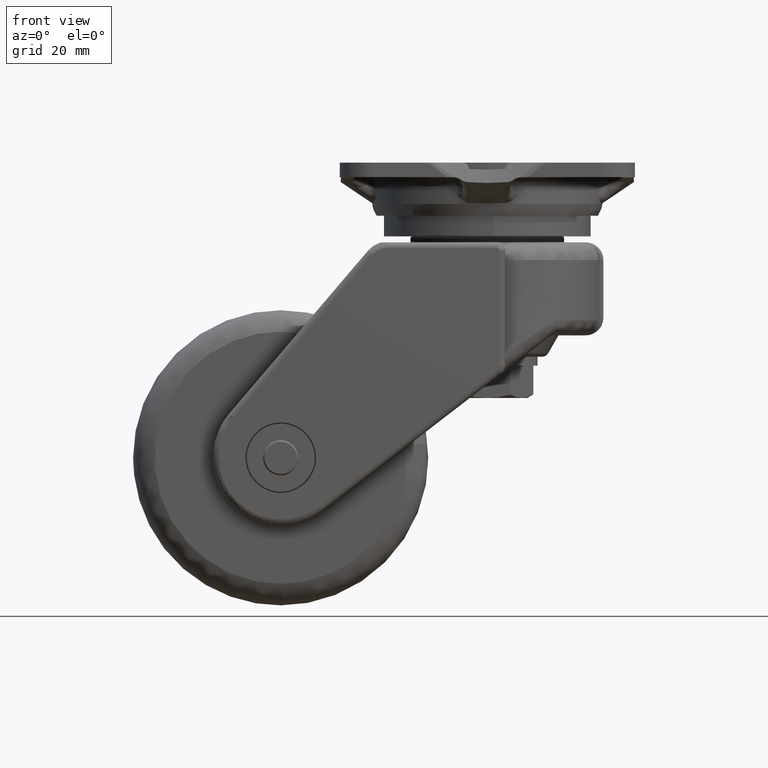
[diagram: clean part render]
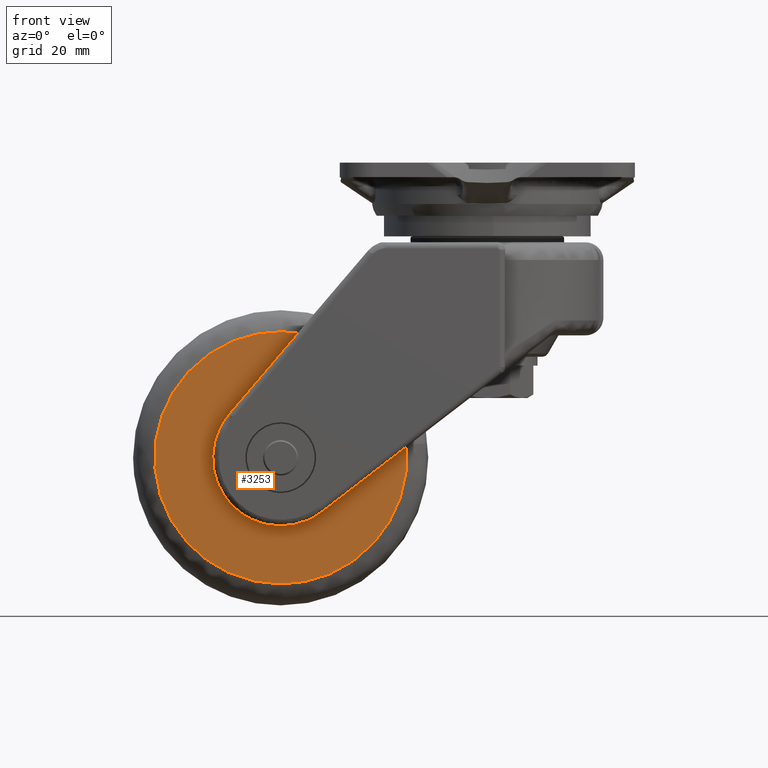
[diagram: same view with one face highlighted and labeled with its STEP entity id]
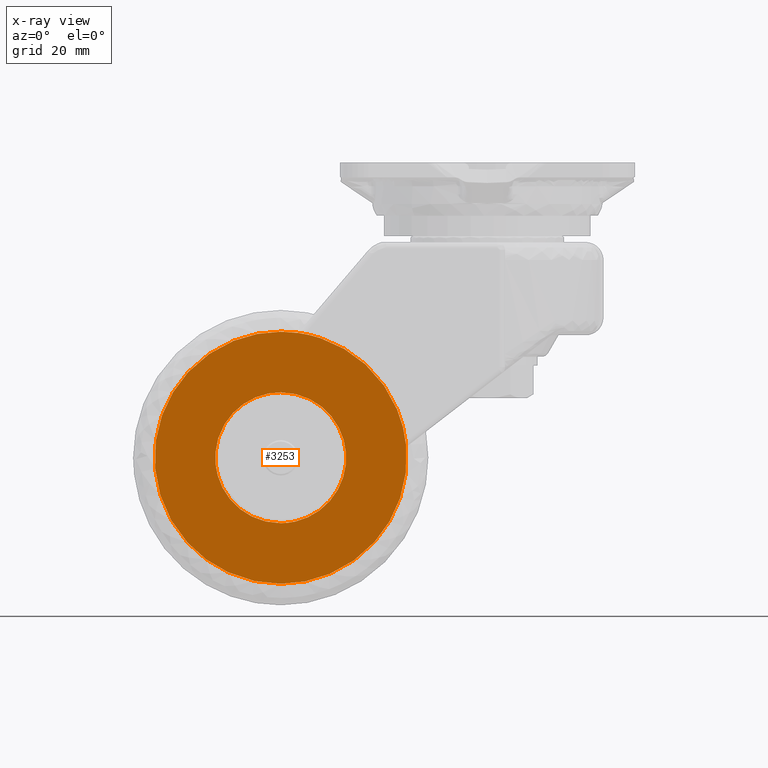
[diagram: x-ray of the same camera — body ghosted, the highlighted face saturated]
A machine part, front view. The second image highlights one B-rep face of the part: STEP entity #3253.
The next image is the same camera in x-ray: the body ghosted, the highlighted face saturated — about 0% of this face is hidden behind the body in this view.
In plain terms, the highlighted face is a freeform B-spline surface patch.
Its self-contained STEP definition (entity closure, byte-faithful):
#1181=CARTESIAN_POINT('',(-92.102474761133081,-28.999999999958519,-80.260497510465314));
#1182=VERTEX_POINT('',#1181);
#1188=CARTESIAN_POINT('',(-70.0,-29.0,-104.170820000000010));
#1189=VERTEX_POINT('',#1188);
#1190=CARTESIAN_POINT('',(-70.0,-29.0,-104.170820000000010));
#1191=CARTESIAN_POINT('',(-92.170820000000020,-29.000000000000007,-104.170819999999990));
#1192=CARTESIAN_POINT('',(-92.170820000000020,-29.0,-82.0));
#1193=CARTESIAN_POINT('',(-92.170820000000020,-29.0,-81.128906108967939));
#1194=CARTESIAN_POINT('',(-92.102474761133081,-28.999999999958526,-80.260497510465314));
#1202=(BOUNDED_CURVE()B_SPLINE_CURVE(2,(#1190,#1191,#1192,#1193,#1194),.UNSPECIFIED.,.F.,.U.)B_SPLINE_CURVE_WITH_KNOTS((3,2,3),(0.500000000000000,0.750000000000000,0.763668699379342),.UNSPECIFIED.)CURVE()GEOMETRIC_REPRESENTATION_ITEM()RATIONAL_B_SPLINE_CURVE((1.0,0.707106781186547,1.0,0.983986122567164,0.969723356146544))REPRESENTATION_ITEM(''));
#1203=EDGE_CURVE('',#1189,#1182,#1202,.T.);
#1205=CARTESIAN_POINT('',(-70.0,-29.0,-59.829180000000001));
#1206=VERTEX_POINT('',#1205);
#1207=CARTESIAN_POINT('',(-70.0,-29.0,-59.829180000000001));
#1208=CARTESIAN_POINT('',(-47.829180000000008,-29.000000000000007,-59.829180000000015));
#1209=CARTESIAN_POINT('',(-47.829180000000008,-29.0,-82.0));
#1210=CARTESIAN_POINT('',(-47.829180000000008,-29.000000000000007,-104.170819999999990));
#1211=CARTESIAN_POINT('',(-70.0,-29.0,-104.170820000000010));
#1219=(BOUNDED_CURVE()B_SPLINE_CURVE(2,(#1207,#1208,#1209,#1210,#1211),.UNSPECIFIED.,.F.,.U.)B_SPLINE_CURVE_WITH_KNOTS((3,2,3),(0.0,0.250000000000000,0.500000000000000),.UNSPECIFIED.)CURVE()GEOMETRIC_REPRESENTATION_ITEM()RATIONAL_B_SPLINE_CURVE((1.0,0.707106781186547,1.0,0.707106781186547,1.0))REPRESENTATION_ITEM(''));
#1220=EDGE_CURVE('',#1206,#1189,#1219,.T.);
#1222=CARTESIAN_POINT('',(-82.655996043403846,-28.999999999998121,-63.796400805830217));
#1223=VERTEX_POINT('',#1222);
#1224=CARTESIAN_POINT('',(-82.655996043403846,-28.999999999998114,-63.796400805830224));
#1225=CARTESIAN_POINT('',(-76.949791868268690,-29.0,-59.829180000000008));
#1226=CARTESIAN_POINT('',(-70.0,-29.0,-59.829180000000001));
#1234=(BOUNDED_CURVE()B_SPLINE_CURVE(2,(#1224,#1225,#1226),.UNSPECIFIED.,.F.,.U.)B_SPLINE_CURVE_WITH_KNOTS((3,3),(0.901909391059582,1.0),.UNSPECIFIED.)CURVE()GEOMETRIC_REPRESENTATION_ITEM()RATIONAL_B_SPLINE_CURVE((0.860340221600475,0.885079703248278,1.0))REPRESENTATION_ITEM(''));
#1235=EDGE_CURVE('',#1223,#1206,#1234,.T.);
#1273=CARTESIAN_POINT('',(-92.102474761133081,-28.999999999958519,-80.260497510465314));
#1274=CARTESIAN_POINT('',(-91.278522022124079,-29.0,-69.791185326640303));
#1275=CARTESIAN_POINT('',(-82.655996043403846,-28.999999999998114,-63.796400805830224));
#1283=(BOUNDED_CURVE()B_SPLINE_CURVE(2,(#1273,#1274,#1275),.UNSPECIFIED.,.F.,.U.)B_SPLINE_CURVE_WITH_KNOTS((3,3),(0.763668699379342,0.901909391059582),.UNSPECIFIED.)CURVE()GEOMETRIC_REPRESENTATION_ITEM()RATIONAL_B_SPLINE_CURVE((0.969723356146546,0.825474467460033,0.860340221600475))REPRESENTATION_ITEM(''));
#1284=EDGE_CURVE('',#1182,#1223,#1283,.T.);
#2683=CARTESIAN_POINT('',(-56.391804598703523,-29.0,-41.521937133909319));
#2684=VERTEX_POINT('',#2683);
#2698=CARTESIAN_POINT('',(-27.511321238750511,-29.0,-77.714124022097238));
#2699=VERTEX_POINT('',#2698);
#2700=CARTESIAN_POINT('',(-56.391804598703523,-28.999999999999993,-41.521937133909319));
#2701=CARTESIAN_POINT('',(-30.276452577349460,-29.000000000000004,-50.301576974507853));
#2702=CARTESIAN_POINT('',(-27.511321238750515,-29.000000000000004,-77.714124022097238));
#2710=(BOUNDED_CURVE()B_SPLINE_CURVE(2,(#2700,#2701,#2702),.UNSPECIFIED.,.F.,.U.)B_SPLINE_CURVE_WITH_KNOTS((3,3),(0.054168823122165,0.232576558912858),.UNSPECIFIED.)CURVE()GEOMETRIC_REPRESENTATION_ITEM()RATIONAL_B_SPLINE_CURVE((0.900576160797837,0.782136423769729,0.962019632120242))REPRESENTATION_ITEM(''));
#2711=EDGE_CURVE('',#2684,#2699,#2710,.T.);
#2827=CARTESIAN_POINT('',(-70.0,-29.0,-124.704291999999900));
#2828=VERTEX_POINT('',#2827);
#2829=CARTESIAN_POINT('',(-27.511321238750508,-28.999999999999996,-77.714124022097238));
#2830=CARTESIAN_POINT('',(-27.295708000000101,-29.000000000000004,-79.851638490668506));
#2831=CARTESIAN_POINT('',(-27.295708000000101,-29.0,-82.0));
#2832=CARTESIAN_POINT('',(-27.295708000000108,-29.000000000000007,-124.704291999999900));
#2833=CARTESIAN_POINT('',(-70.0,-29.0,-124.704291999999900));
#2841=(BOUNDED_CURVE()B_SPLINE_CURVE(2,(#2829,#2830,#2831,#2832,#2833),.UNSPECIFIED.,.F.,.U.)B_SPLINE_CURVE_WITH_KNOTS((3,2,3),(0.232576558912858,0.250000000000000,0.500000000000000),.UNSPECIFIED.)CURVE()GEOMETRIC_REPRESENTATION_ITEM()RATIONAL_B_SPLINE_CURVE((0.962019632120242,0.979587169028722,1.0,0.707106781186547,1.0))REPRESENTATION_ITEM(''));
#2842=EDGE_CURVE('',#2699,#2828,#2841,.T.);
#2844=CARTESIAN_POINT('',(-70.0,-29.0,-39.295708000000097));
#2845=VERTEX_POINT('',#2844);
#2846=CARTESIAN_POINT('',(-70.0,-29.0,-124.704291999999900));
#2847=CARTESIAN_POINT('',(-112.704291999999900,-29.000000000000007,-124.704291999999900));
#2848=CARTESIAN_POINT('',(-112.704291999999900,-29.0,-82.0));
#2849=CARTESIAN_POINT('',(-112.704291999999900,-29.000000000000007,-39.295708000000111));
#2850=CARTESIAN_POINT('',(-70.0,-29.0,-39.295708000000097));
#2858=(BOUNDED_CURVE()B_SPLINE_CURVE(2,(#2846,#2847,#2848,#2849,#2850),.UNSPECIFIED.,.F.,.U.)B_SPLINE_CURVE_WITH_KNOTS((3,2,3),(0.500000000000000,0.750000000000000,1.0),.UNSPECIFIED.)CURVE()GEOMETRIC_REPRESENTATION_ITEM()RATIONAL_B_SPLINE_CURVE((1.0,0.707106781186547,1.0,0.707106781186547,1.0))REPRESENTATION_ITEM(''));
#2859=EDGE_CURVE('',#2828,#2845,#2858,.T.);
#2861=CARTESIAN_POINT('',(-70.0,-29.0,-39.295708000000097));
#2862=CARTESIAN_POINT('',(-63.013802615570384,-29.0,-39.295708000000097));
#2863=CARTESIAN_POINT('',(-56.391804598703523,-28.999999999999993,-41.521937133909319));
#2871=(BOUNDED_CURVE()B_SPLINE_CURVE(2,(#2861,#2862,#2863),.UNSPECIFIED.,.F.,.U.)B_SPLINE_CURVE_WITH_KNOTS((3,3),(0.0,0.054168823122165),.UNSPECIFIED.)CURVE()GEOMETRIC_REPRESENTATION_ITEM()RATIONAL_B_SPLINE_CURVE((1.0,0.936537276145650,0.900576160797837))REPRESENTATION_ITEM(''));
#2872=EDGE_CURVE('',#2845,#2684,#2871,.T.);
#3236=CARTESIAN_POINT('',(-116.970324817532100,-29.0,-128.970451407016210));
#3237=CARTESIAN_POINT('',(-116.970324817532100,-29.0,-35.029547065759353));
#3238=CARTESIAN_POINT('',(-23.032207978440098,-29.0,-128.970451407016210));
#3239=CARTESIAN_POINT('',(-23.032207978440098,-29.0,-35.029547065759353));
#3240=B_SPLINE_SURFACE_WITH_KNOTS('',1,1,((#3236,#3238),(#3237,#3239)),.UNSPECIFIED.,.F.,.F.,.U.,(2,2),(2,2),(0.0,93.940904341256811),(0.0,93.938116839092018),.UNSPECIFIED.);
#3241=ORIENTED_EDGE('',*,*,#2859,.F.);
#3242=ORIENTED_EDGE('',*,*,#2842,.F.);
#3243=ORIENTED_EDGE('',*,*,#2711,.F.);
#3244=ORIENTED_EDGE('',*,*,#2872,.F.);
#3245=EDGE_LOOP('',(#3241,#3242,#3243,#3244));
#3246=FACE_OUTER_BOUND('',#3245,.T.);
#3247=ORIENTED_EDGE('',*,*,#1220,.T.);
#3248=ORIENTED_EDGE('',*,*,#1203,.T.);
#3249=ORIENTED_EDGE('',*,*,#1284,.T.);
#3250=ORIENTED_EDGE('',*,*,#1235,.T.);
#3251=EDGE_LOOP('',(#3247,#3248,#3249,#3250));
#3252=FACE_BOUND('',#3251,.T.);
#3253=ADVANCED_FACE('',(#3246,#3252),#3240,.F.);